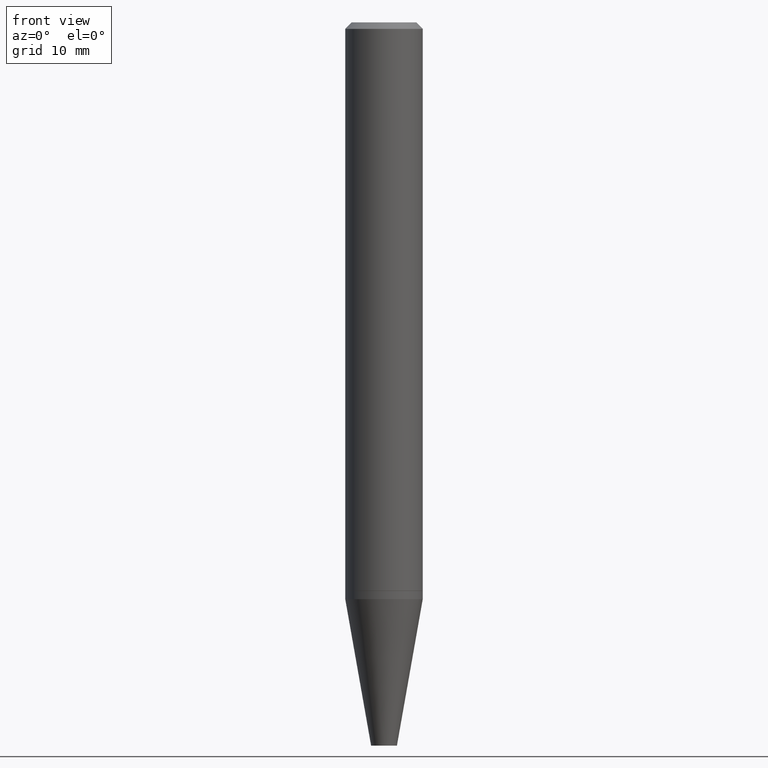
[diagram: clean part render]
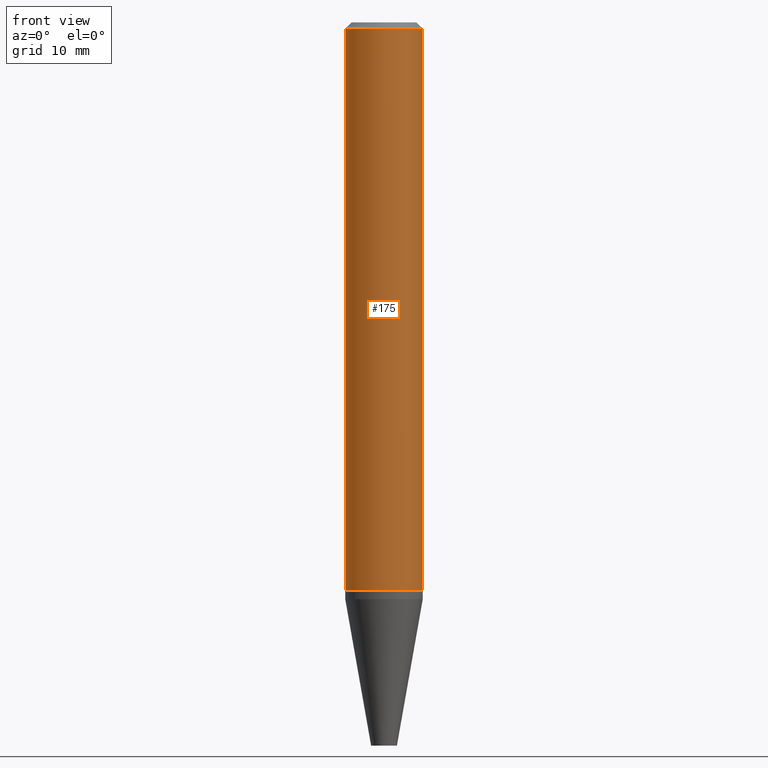
[diagram: same view with one face highlighted and labeled with its STEP entity id]
A machine part, front view. The second image highlights one B-rep face of the part: STEP entity #175.
In plain terms, the highlighted cylindrical surface (partial cylindrical patch) has radius 4.7625 mm, axis along (-0, 0, 1).
Its self-contained STEP definition (entity closure, byte-faithful):
#6 = VECTOR ( 'NONE', #36, 39.37007874015748143 ) ;
#10 = VERTEX_POINT ( 'NONE', #388 ) ;
#21 = EDGE_CURVE ( 'NONE', #136, #198, #73, .T. ) ;
#24 = DIRECTION ( 'NONE',  ( -2.445468806185136597E-29, 3.491481338843145583E-15, 1.000000000000000000 ) ) ;
#33 = DIRECTION ( 'NONE',  ( 1.000000000000000000, -6.982962677686265922E-15, 0.000000000000000000 ) ) ;
#36 = DIRECTION ( 'NONE',  ( -2.445468806185136877E-29, 3.491481338843145188E-15, 1.000000000000000000 ) ) ;
#38 = ORIENTED_EDGE ( 'NONE', *, *, #77, .T. ) ;
#57 = CARTESIAN_POINT ( 'NONE',  ( 0.1875000000000000278, -1.418414293905023320E-15, -0.03125000000000003469 ) ) ;
#67 = CARTESIAN_POINT ( 'NONE',  ( 7.642090019328561499E-31, -1.091087918388484350E-16, -0.03125000000000003469 ) ) ;
#73 = CIRCLE ( 'NONE', #112, 0.1875000000000000278 ) ;
#75 = EDGE_LOOP ( 'NONE', ( #255, #202, #38, #260 ) ) ;
#77 = EDGE_CURVE ( 'NONE', #10, #198, #95, .T. ) ;
#80 = CARTESIAN_POINT ( 'NONE',  ( 6.723816482606031719E-29, -9.599827941149227567E-15, -2.749499999999999833 ) ) ;
#91 = CARTESIAN_POINT ( 'NONE',  ( -0.1875000000000000278, -3.522200736943847330E-15, -0.03125000000000003469 ) ) ;
#95 = LINE ( 'NONE', #154, #6 ) ;
#99 = LINE ( 'NONE', #219, #133 ) ;
#112 = AXIS2_PLACEMENT_3D ( 'NONE', #67, #213, #33 ) ;
#115 = CIRCLE ( 'NONE', #373, 0.1875000000000003886 ) ;
#118 = EDGE_CURVE ( 'NONE', #243, #136, #99, .T. ) ;
#133 = VECTOR ( 'NONE', #356, 39.37007874015748143 ) ;
#136 = VERTEX_POINT ( 'NONE', #91 ) ;
#146 = DIRECTION ( 'NONE',  ( 1.000000000000000000, -6.982962677686265922E-15, 4.876176775795935793E-29 ) ) ;
#154 = CARTESIAN_POINT ( 'NONE',  ( 0.1875000000000001943, -1.309305502066176192E-15, 9.142831454617389421E-30 ) ) ;
#175 = ADVANCED_FACE ( 'NONE', ( #273 ), #276, .T. ) ;
#198 = VERTEX_POINT ( 'NONE', #57 ) ;
#199 = DIRECTION ( 'NONE',  ( 1.000000000000000000, -6.982962677686269077E-15, 0.000000000000000000 ) ) ;
#202 = ORIENTED_EDGE ( 'NONE', *, *, #344, .T. ) ;
#204 = DIRECTION ( 'NONE',  ( -2.445468806185136597E-29, 3.491481338843145583E-15, 1.000000000000000000 ) ) ;
#213 = DIRECTION ( 'NONE',  ( -2.445468806185136597E-29, 3.491481338843145583E-15, 1.000000000000000000 ) ) ;
#219 = CARTESIAN_POINT ( 'NONE',  ( -0.1875000000000001943, 1.332267629550189229E-15, -9.223003294227957800E-30 ) ) ;
#243 = VERTEX_POINT ( 'NONE', #358 ) ;
#255 = ORIENTED_EDGE ( 'NONE', *, *, #118, .F. ) ;
#260 = ORIENTED_EDGE ( 'NONE', *, *, #21, .F. ) ;
#273 = FACE_OUTER_BOUND ( 'NONE', #75, .T. ) ;
#276 = CYLINDRICAL_SURFACE ( 'NONE', #317, 0.1875000000000001943 ) ;
#317 = AXIS2_PLACEMENT_3D ( 'NONE', #402, #24, #146 ) ;
#344 = EDGE_CURVE ( 'NONE', #243, #10, #115, .T. ) ;
#356 = DIRECTION ( 'NONE',  ( -2.445468806185136877E-29, 3.491481338843145188E-15, 1.000000000000000000 ) ) ;
#358 = CARTESIAN_POINT ( 'NONE',  ( -0.1875000000000003886, -8.267560311599038141E-15, -2.749499999999999833 ) ) ;
#373 = AXIS2_PLACEMENT_3D ( 'NONE', #80, #204, #199 ) ;
#388 = CARTESIAN_POINT ( 'NONE',  ( 0.1875000000000003886, -1.090913344321540415E-14, -2.749499999999999833 ) ) ;
#402 = CARTESIAN_POINT ( 'NONE',  ( 0.000000000000000000, 0.000000000000000000, 0.000000000000000000 ) ) ;